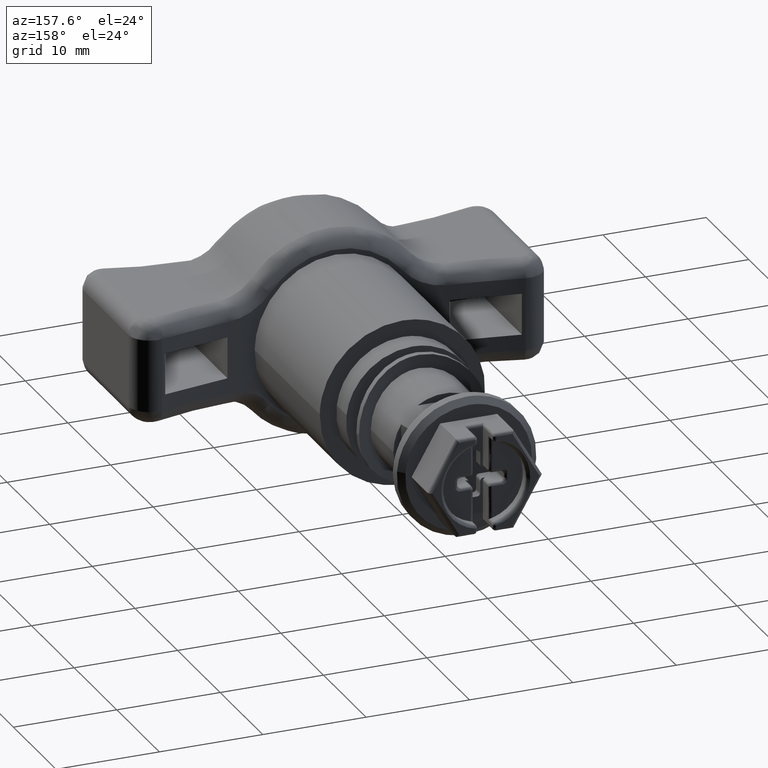
[diagram: clean part render]
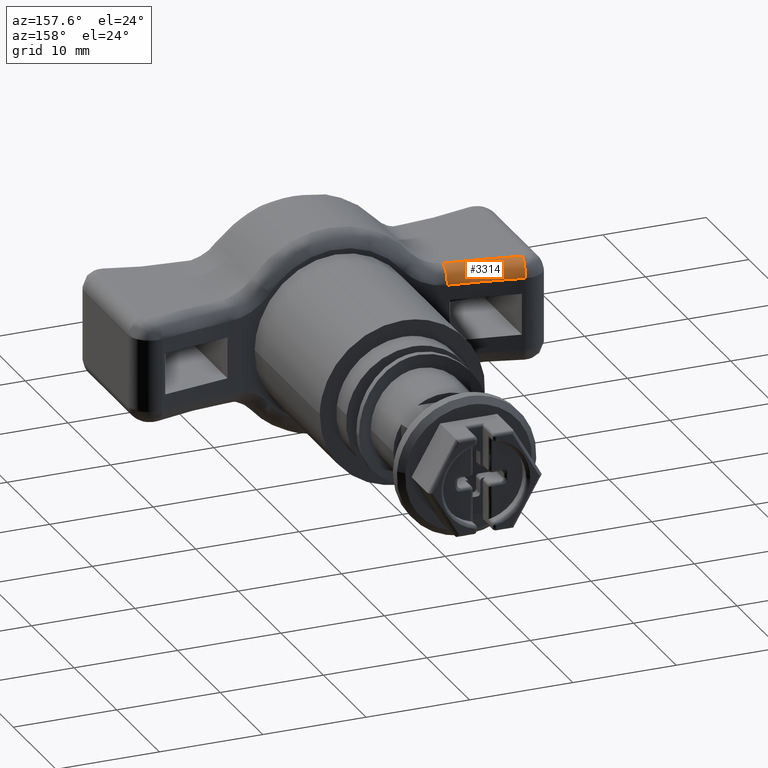
[diagram: same view with one face highlighted and labeled with its STEP entity id]
A machine part, auxiliary view. The second image highlights one B-rep face of the part: STEP entity #3314.
In plain terms, the highlighted face is a freeform B-spline surface patch.
Its self-contained STEP definition (entity closure, byte-faithful):
#2500=CARTESIAN_POINT('',(-17.560976556879499,-13.749446832890040,3.500000237480430));
#2501=VERTEX_POINT('',#2500);
#2507=CARTESIAN_POINT('',(-10.526435067400501,-15.005106250999249,3.500000237480395));
#2508=VERTEX_POINT('',#2507);
#2509=CARTESIAN_POINT('',(-17.560976556879499,-13.749446832890040,3.500000237480430));
#2510=CARTESIAN_POINT('',(-14.071773200395290,-14.534517593407589,3.500000237480204));
#2511=CARTESIAN_POINT('',(-10.526435067400501,-15.005106250999249,3.500000237480395));
#2519=(BOUNDED_CURVE()B_SPLINE_CURVE(2,(#2509,#2510,#2511),.UNSPECIFIED.,.F.,.U.)CURVE()GEOMETRIC_REPRESENTATION_ITEM()QUASI_UNIFORM_CURVE()RATIONAL_B_SPLINE_CURVE((1.0,0.999002208266553,1.0))REPRESENTATION_ITEM(''));
#2520=EDGE_CURVE('',#2501,#2508,#2519,.T.);
#3249=CARTESIAN_POINT('',(-18.268082648154682,-15.233642984863629,4.996388701305721));
#3250=CARTESIAN_POINT('',(-14.356918148037664,-16.132005853322408,4.996388701305664));
#3251=CARTESIAN_POINT('',(-10.376481306627049,-16.642286307526081,4.996388701305605));
#3252=CARTESIAN_POINT('',(-17.882896799696848,-13.556675615296900,5.116004806254608));
#3253=CARTESIAN_POINT('',(-14.054199915117344,-14.436096339121519,5.116004806254553));
#3254=CARTESIAN_POINT('',(-10.157691309171906,-14.935617437048482,5.116004806254496));
#3255=CARTESIAN_POINT('',(-17.909818422973373,-13.673883150182228,3.395413823779939));
#3256=CARTESIAN_POINT('',(-14.075357666001095,-14.554627788901255,3.395413823779882));
#3257=CARTESIAN_POINT('',(-10.172983101203585,-15.054900885733522,3.395413823779826));
#3265=(BOUNDED_SURFACE()B_SPLINE_SURFACE(2,2,((#3249,#3252,#3255),(#3250,#3253,#3256),(#3251,#3254,#3257)),.UNSPECIFIED.,.F.,.F.,.U.)B_SPLINE_SURFACE_WITH_KNOTS((3,3),(3,3),(25.285289758205419,33.330572134494780),(0.313405287571251,3.046999054841697),.UNSPECIFIED.)GEOMETRIC_REPRESENTATION_ITEM()RATIONAL_B_SPLINE_SURFACE(((0.890804271154917,0.582946273765821,0.885869763476074),(0.889713573692259,0.582232516499213,0.884785107806410),(0.890773208594131,0.582925946288001,0.885838872982766)))REPRESENTATION_ITEM('')SURFACE());
#3266=CARTESIAN_POINT('',(-10.723805715539640,-16.492064497640051,5.000000237480390));
#3267=VERTEX_POINT('',#3266);
#3268=CARTESIAN_POINT('',(-10.723805715539660,-16.492064497640051,5.000000237480395));
#3269=CARTESIAN_POINT('',(-10.526435067400493,-15.005106250999232,5.000000237480395));
#3270=CARTESIAN_POINT('',(-10.526435067400490,-15.005106250999230,3.500000237480395));
#3278=(BOUNDED_CURVE()B_SPLINE_CURVE(2,(#3268,#3269,#3270),.UNSPECIFIED.,.F.,.U.)CURVE()GEOMETRIC_REPRESENTATION_ITEM()QUASI_UNIFORM_CURVE()RATIONAL_B_SPLINE_CURVE((1.0,0.707106781186548,1.0))REPRESENTATION_ITEM(''));
#3279=EDGE_CURVE('',#3267,#2508,#3278,.T.);
#3280=ORIENTED_EDGE('',*,*,#3279,.T.);
#3281=ORIENTED_EDGE('',*,*,#2520,.F.);
#3282=CARTESIAN_POINT('',(-17.890244851681551,-15.212861466559550,5.000000237480500));
#3283=VERTEX_POINT('',#3282);
#3284=CARTESIAN_POINT('',(-17.890244851681601,-15.212861466559550,5.000000237480495));
#3285=CARTESIAN_POINT('',(-17.753857458315107,-14.606695277918353,5.000000237480496));
#3286=CARTESIAN_POINT('',(-17.657417007597299,-14.178071055404169,4.560660409260290));
#3287=CARTESIAN_POINT('',(-17.560976556879503,-13.749446832890021,4.121320581040115));
#3288=CARTESIAN_POINT('',(-17.560976556879499,-13.749446832890040,3.500000237480430));
#3296=(BOUNDED_CURVE()B_SPLINE_CURVE(2,(#3284,#3285,#3286,#3287,#3288),.UNSPECIFIED.,.F.,.U.)B_SPLINE_CURVE_WITH_KNOTS((3,2,3),(0.0,0.500000000000000,1.0),.UNSPECIFIED.)CURVE()GEOMETRIC_REPRESENTATION_ITEM()RATIONAL_B_SPLINE_CURVE((1.0,0.923879532511282,1.0,0.923879532511282,1.0))REPRESENTATION_ITEM(''));
#3297=EDGE_CURVE('',#3283,#2501,#3296,.T.);
#3298=ORIENTED_EDGE('',*,*,#3297,.F.);
#3299=CARTESIAN_POINT('',(-10.723805715539640,-16.492064497640051,5.000000237480390));
#3300=CARTESIAN_POINT('',(-14.335618935370563,-16.012652303137667,5.000000237480241));
#3301=CARTESIAN_POINT('',(-17.890244851681551,-15.212861466559550,5.000000237480500));
#3309=(BOUNDED_CURVE()B_SPLINE_CURVE(2,(#3299,#3300,#3301),.UNSPECIFIED.,.F.,.U.)CURVE()GEOMETRIC_REPRESENTATION_ITEM()QUASI_UNIFORM_CURVE()RATIONAL_B_SPLINE_CURVE((1.0,0.999002208266553,1.0))REPRESENTATION_ITEM(''));
#3310=EDGE_CURVE('',#3267,#3283,#3309,.T.);
#3311=ORIENTED_EDGE('',*,*,#3310,.F.);
#3312=EDGE_LOOP('',(#3280,#3281,#3298,#3311));
#3313=FACE_OUTER_BOUND('',#3312,.T.);
#3314=ADVANCED_FACE('',(#3313),#3265,.T.);